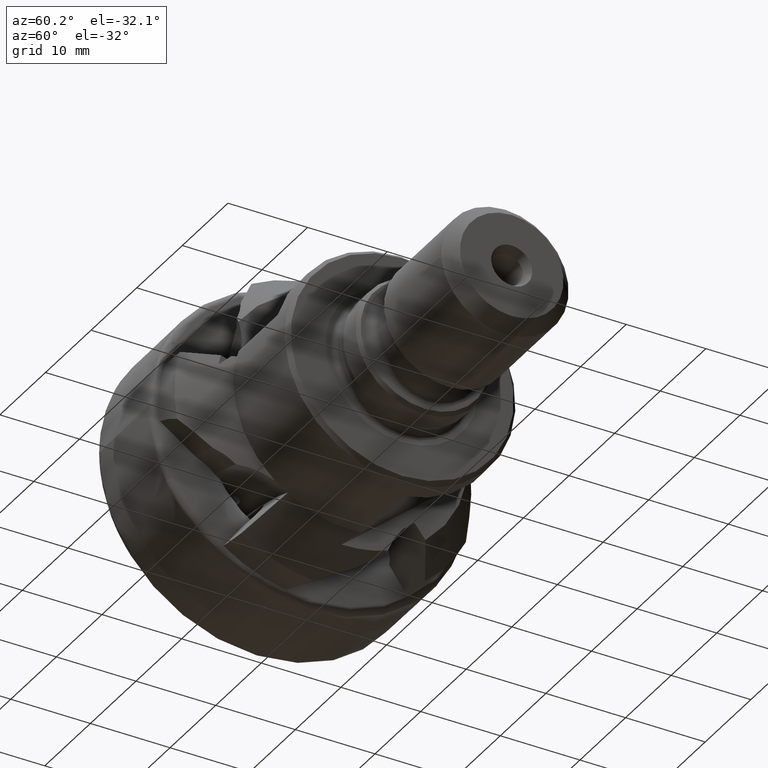
[diagram: clean part render]
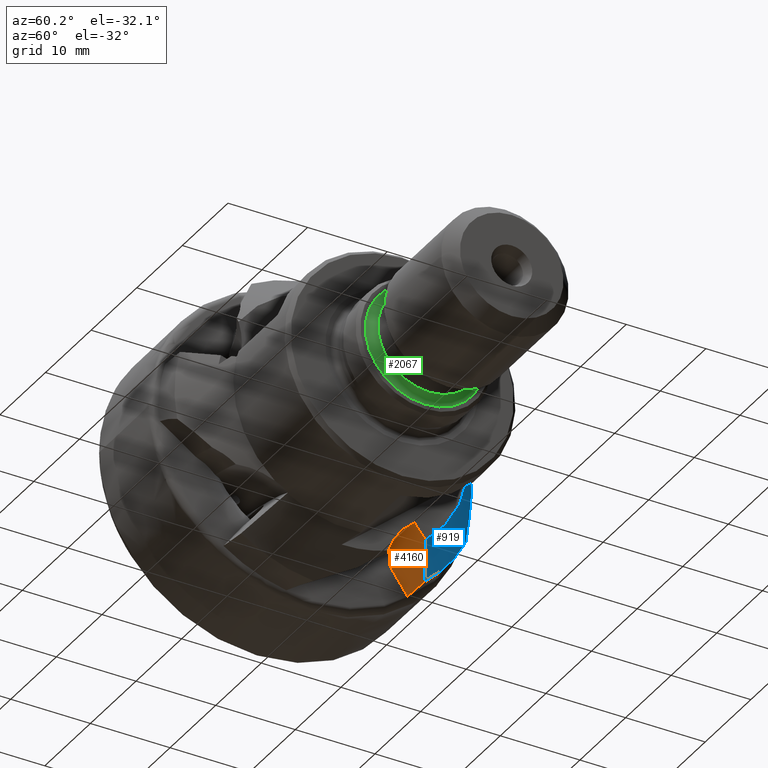
[diagram: same view with three faces highlighted in distinct colors, each labeled with its STEP entity id]
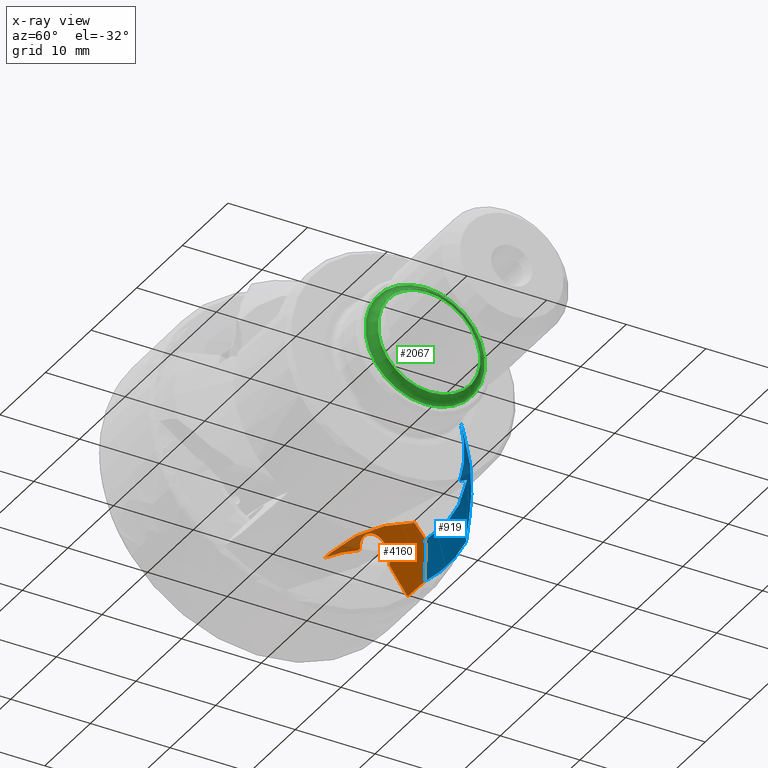
[diagram: x-ray of the same camera — body ghosted, the three highlighted faces saturated]
A machine part, auxiliary view with three faces highlighted in distinct colors.
The next image is the same camera in x-ray (body ghosted, the three faces saturated) — at least one of them is partly hidden behind the body in this view.
Their STEP definitions:

[orange] entity #4160 — the highlighted planar face has unit normal (0.0872, -0.785, -0.6133).
#13 = CARTESIAN_POINT ( 'NONE',  ( 3.946055515482679500, 5.778802882341090600, -8.027156975217790700 ) ) ;
#27 = CARTESIAN_POINT ( 'NONE',  ( 12.23341818291115000, 12.08443954916814200, -14.92032698496009300 ) ) ;
#58 = CARTESIAN_POINT ( 'NONE',  ( 12.61520539697992200, 6.853179426064123400, -8.170365436965074200 ) ) ;
#72 = CARTESIAN_POINT ( 'NONE',  ( 10.47325528511086300, 6.192388499023624400, -7.628973751557560400 ) ) ;
#97 = EDGE_CURVE ( 'NONE', #1510, #237, #1248, .T. ) ;
#106 = EDGE_CURVE ( 'NONE', #3384, #2085, #4527, .T. ) ;
#125 = EDGE_CURVE ( 'NONE', #336, #1510, #3118, .T. ) ;
#141 = AXIS2_PLACEMENT_3D ( 'NONE', #581, #3060, #927 ) ;
#237 = VERTEX_POINT ( 'NONE', #3522 ) ;
#243 = DIRECTION ( 'NONE',  ( 0.9960953959093014100, 0.07736549132352861500, 0.04252696792108680300 ) ) ;
#331 = ORIENTED_EDGE ( 'NONE', *, *, #125, .T. ) ;
#336 = VERTEX_POINT ( 'NONE', #3897 ) ;
#405 = ORIENTED_EDGE ( 'NONE', *, *, #3187, .T. ) ;
#412 = CARTESIAN_POINT ( 'NONE',  ( 8.593843813832471300, 7.213485428924766300, -9.202992263208747300 ) ) ;
#423 = CARTESIAN_POINT ( 'NONE',  ( 8.977918880617993500, 7.243316061982472600, -9.186594689130029000 ) ) ;
#578 = FACE_OUTER_BOUND ( 'NONE', #1666, .T. ) ;
#581 = CARTESIAN_POINT ( 'NONE',  ( 4.693019971817706800, 21.84555144615301400, -28.48550986327269300 ) ) ;
#608 = VERTEX_POINT ( 'NONE', #3902 ) ;
#631 = CARTESIAN_POINT ( 'NONE',  ( 5.044657884303792800, 5.864129962841703400, -7.980253608443134400 ) ) ;
#863 = CIRCLE ( 'NONE', #141, 25.99990415222657700 ) ;
#927 = DIRECTION ( 'NONE',  ( 0.0000000000000000000, -0.6156614753256647300, 0.7880107536067169100 ) ) ;
#987 = VECTOR ( 'NONE', #243, 1000.000000000000000 ) ;
#988 = CARTESIAN_POINT ( 'NONE',  ( 11.09987914869350900, 12.00704680414810400, -14.98235051795935000 ) ) ;
#1031 = CARTESIAN_POINT ( 'NONE',  ( 8.226207806344792300, 7.063319827044586500, -9.063032025973733100 ) ) ;
#1054 = ORIENTED_EDGE ( 'NONE', *, *, #3636, .T. ) ;
#1064 = VECTOR ( 'NONE', #2941, 999.9999999999998900 ) ;
#1078 = CARTESIAN_POINT ( 'NONE',  ( 13.36681448156617200, 12.16134939801110300, -14.85770565649765600 ) ) ;
#1131 = CARTESIAN_POINT ( 'NONE',  ( 12.48203207116323200, 8.521402454295325100, -10.32451815742239500 ) ) ;
#1133 = ORIENTED_EDGE ( 'NONE', *, *, #4093, .T. ) ;
#1146 = ORIENTED_EDGE ( 'NONE', *, *, #1877, .F. ) ;
#1148 = CARTESIAN_POINT ( 'NONE',  ( 11.35567308641507500, 9.555546643521459800, -11.80822376630907800 ) ) ;
#1156 = CARTESIAN_POINT ( 'NONE',  ( 17.90000000000000200, 8.684091249857733200, -9.762829199147352800 ) ) ;
#1248 = LINE ( 'NONE', #3337, #2355 ) ;
#1268 = VERTEX_POINT ( 'NONE', #1695 ) ;
#1409 = CARTESIAN_POINT ( 'NONE',  ( 8.593843813832471300, 7.213485428924766300, -9.202992263208747300 ) ) ;
#1506 = LINE ( 'NONE', #631, #1603 ) ;
#1510 = VERTEX_POINT ( 'NONE', #1878 ) ;
#1526 = PLANE ( 'NONE',  #3525 ) ;
#1603 = VECTOR ( 'NONE', #3484, 999.9999999999998900 ) ;
#1666 = EDGE_LOOP ( 'NONE', ( #1146, #1133, #3282, #2603, #3278, #1054, #2719, #405, #331, #1754, #3162 ) ) ;
#1679 = CARTESIAN_POINT ( 'NONE',  ( 12.49738582572153700, 8.329070493169487200, -10.07616262565073000 ) ) ;
#1695 = CARTESIAN_POINT ( 'NONE',  ( 11.35567308641507500, 9.555546643521459800, -11.80822376630907800 ) ) ;
#1714 = CARTESIAN_POINT ( 'NONE',  ( 7.851797578833785700, 6.923690482951729000, -8.937520235248182800 ) ) ;
#1715 = CARTESIAN_POINT ( 'NONE',  ( 11.28596915242389700, 10.58002698064954700, -13.12940408884374800 ) ) ;
#1754 = ORIENTED_EDGE ( 'NONE', *, *, #97, .T. ) ;
#1763 = CARTESIAN_POINT ( 'NONE',  ( 6.710112606820647600, 6.533505260820986000, -8.600345234232280600 ) ) ;
#1795 = CARTESIAN_POINT ( 'NONE',  ( 11.09987914869350900, 12.00704680414810400, -14.98235051795935000 ) ) ;
#1823 = LINE ( 'NONE', #3783, #987 ) ;
#1877 = EDGE_CURVE ( 'NONE', #3110, #1268, #1901, .T. ) ;
#1878 = CARTESIAN_POINT ( 'NONE',  ( 12.49738582572153700, 8.329070493169487200, -10.07616262565073000 ) ) ;
#1882 = DIRECTION ( 'NONE',  ( 0.0000000000000000000, 0.6156614753256649500, -0.7880107536067168000 ) ) ;
#1901 = B_SPLINE_CURVE_WITH_KNOTS ( 'NONE', 3,
 ( #988, #3487, #3860, #1715, #4223, #2075, #4578, #2433 ),
 .UNSPECIFIED., .F., .F.,
 ( 4, 2, 2, 4 ),
 ( 5.658429974720307800E-005, 0.002067571057596851200, 0.003073064436521676800, 0.004078557815446502900 ),
 .UNSPECIFIED. ) ;
#1908 = CARTESIAN_POINT ( 'NONE',  ( 11.09987914869350900, 12.00704680414810400, -14.98235051795935000 ) ) ;
#1995 =( BOUNDED_CURVE ( )  B_SPLINE_CURVE ( 3, ( #1131, #4005, #3288, #1148 ),
 .UNSPECIFIED., .F., .T. ) 
 B_SPLINE_CURVE_WITH_KNOTS ( ( 4, 4 ),
 ( 1.331173519080860500, 2.400226728760937800 ),
 .UNSPECIFIED. ) 
 CURVE ( )  GEOMETRIC_REPRESENTATION_ITEM ( )  RATIONAL_B_SPLINE_CURVE ( ( 1.000000000000000000, 0.9070065927678514500, 0.9070065927678514500, 1.000000000000000000 ) ) 
 REPRESENTATION_ITEM ( '' )  );
#2074 = LINE ( 'NONE', #1156, #1064 ) ;
#2075 = CARTESIAN_POINT ( 'NONE',  ( 11.36218566694418900, 9.968157174851869600, -12.33541569203652900 ) ) ;
#2082 = CARTESIAN_POINT ( 'NONE',  ( 16.76765141651624100, 10.99326827203379000, -12.87935356613944800 ) ) ;
#2085 = VERTEX_POINT ( 'NONE', #2577 ) ;
#2090 = EDGE_CURVE ( 'NONE', #2085, #608, #2074, .T. ) ;
#2133 = CARTESIAN_POINT ( 'NONE',  ( 4.756551640032280500, 5.962134548513922100, -8.146635137550640900 ) ) ;
#2355 = VECTOR ( 'NONE', #4488, 1000.000000000000100 ) ;
#2374 = CARTESIAN_POINT ( 'NONE',  ( 15.63414353110450100, 11.61573886797829800, -13.83715689967936200 ) ) ;
#2433 = CARTESIAN_POINT ( 'NONE',  ( 11.35567308641507500, 9.555546643521459800, -11.80822376630907800 ) ) ;
#2498 = CARTESIAN_POINT ( 'NONE',  ( 14.50000000000000000, 12.23777173331198000, -14.79449029211044600 ) ) ;
#2577 = CARTESIAN_POINT ( 'NONE',  ( 17.90000000000000200, 10.37000301705652900, -11.92069785818925900 ) ) ;
#2603 = ORIENTED_EDGE ( 'NONE', *, *, #2090, .T. ) ;
#2719 = ORIENTED_EDGE ( 'NONE', *, *, #2877, .F. ) ;
#2859 = B_SPLINE_CURVE_WITH_KNOTS ( 'NONE', 3,
 ( #1409, #1031, #1714, #3907, #1763, #4262, #2133, #13 ),
 .UNSPECIFIED., .F., .F.,
 ( 4, 2, 2, 4 ),
 ( 0.008763163472764332100, 0.01002672568947170000, 0.01129028790617907100, 0.01381741233959380900 ),
 .UNSPECIFIED. ) ;
#2877 = EDGE_CURVE ( 'NONE', #2995, #3421, #2859, .T. ) ;
#2904 = CARTESIAN_POINT ( 'NONE',  ( 3.946055515482679500, 5.778802882341090600, -8.027156975217790700 ) ) ;
#2941 = DIRECTION ( 'NONE',  ( 0.0000000000000000000, -0.6156614753256649500, 0.7880107536067168000 ) ) ;
#2995 = VERTEX_POINT ( 'NONE', #412 ) ;
#3036 = VERTEX_POINT ( 'NONE', #3989 ) ;
#3060 = DIRECTION ( 'NONE',  ( -0.08715574274765833200, 0.7850121347822922600, 0.6133186975387693300 ) ) ;
#3110 = VERTEX_POINT ( 'NONE', #1908 ) ;
#3118 =( BOUNDED_CURVE ( )  B_SPLINE_CURVE ( 3, ( #423, #72, #58, #1679 ),
 .UNSPECIFIED., .F., .F. ) 
 B_SPLINE_CURVE_WITH_KNOTS ( ( 4, 4 ),
 ( 5.127512264379687300, 7.614358826260448700 ),
 .UNSPECIFIED. ) 
 CURVE ( )  GEOMETRIC_REPRESENTATION_ITEM ( )  RATIONAL_B_SPLINE_CURVE ( ( 1.000000000000000000, 0.5477044688702651400, 0.5477044688702651400, 1.000000000000000000 ) ) 
 REPRESENTATION_ITEM ( '' )  );
#3162 = ORIENTED_EDGE ( 'NONE', *, *, #3431, .T. ) ;
#3187 = EDGE_CURVE ( 'NONE', #2995, #336, #1823, .T. ) ;
#3278 = ORIENTED_EDGE ( 'NONE', *, *, #3514, .F. ) ;
#3282 = ORIENTED_EDGE ( 'NONE', *, *, #106, .T. ) ;
#3288 = CARTESIAN_POINT ( 'NONE',  ( 12.02980739933266800, 9.380948501746473800, -11.48895038112837100 ) ) ;
#3337 = CARTESIAN_POINT ( 'NONE',  ( 12.63402038633856100, 6.617489596051008500, -7.866022504446507700 ) ) ;
#3384 = VERTEX_POINT ( 'NONE', #2498 ) ;
#3421 = VERTEX_POINT ( 'NONE', #2904 ) ;
#3431 = EDGE_CURVE ( 'NONE', #237, #1268, #1995, .T. ) ;
#3484 = DIRECTION ( 'NONE',  ( -0.9960953959093015200, -0.07736549132352885100, -0.04252696792108649800 ) ) ;
#3487 = CARTESIAN_POINT ( 'NONE',  ( 11.15304905648723700, 11.59932701254986000, -14.45293726494077700 ) ) ;
#3514 = EDGE_CURVE ( 'NONE', #3036, #608, #863, .T. ) ;
#3522 = CARTESIAN_POINT ( 'NONE',  ( 12.48203207116323200, 8.521402454295325100, -10.32451815742239500 ) ) ;
#3525 = AXIS2_PLACEMENT_3D ( 'NONE', #4015, #4027, #1882 ) ;
#3585 = CARTESIAN_POINT ( 'NONE',  ( 14.50000000000000000, 12.23777173331198000, -14.79449029211044600 ) ) ;
#3636 = EDGE_CURVE ( 'NONE', #3036, #3421, #1506, .T. ) ;
#3740 = CARTESIAN_POINT ( 'NONE',  ( 14.50000000000000000, 12.23777173331198000, -14.79449029211044600 ) ) ;
#3783 = CARTESIAN_POINT ( 'NONE',  ( 5.020130502927989000, 6.935919557940786200, -9.355567199260773800 ) ) ;
#3860 = CARTESIAN_POINT ( 'NONE',  ( 11.20621794687470000, 11.19160710058648300, -13.92352400244050700 ) ) ;
#3897 = CARTESIAN_POINT ( 'NONE',  ( 8.977918880617993500, 7.243316061982472600, -9.186594689130029000 ) ) ;
#3902 = CARTESIAN_POINT ( 'NONE',  ( 17.90000000000000600, 8.986214975281024300, -10.14952993338991000 ) ) ;
#3907 = CARTESIAN_POINT ( 'NONE',  ( 7.093796291163380700, 6.658711168501292300, -8.706078062281791900 ) ) ;
#3989 = CARTESIAN_POINT ( 'NONE',  ( 5.044657884303792800, 5.864129962841703400, -7.980253608443134400 ) ) ;
#4005 = CARTESIAN_POINT ( 'NONE',  ( 12.44375477073031700, 9.000890922793976400, -10.94367481175743400 ) ) ;
#4015 = CARTESIAN_POINT ( 'NONE',  ( 5.044657884303792800, 5.864129962841703400, -7.980253608443134400 ) ) ;
#4027 = DIRECTION ( 'NONE',  ( 0.08715574274765845700, -0.7850121347822921500, -0.6133186975387694400 ) ) ;
#4084 =( BOUNDED_CURVE ( )  B_SPLINE_CURVE ( 3, ( #1795, #27, #1078, #3585 ),
 .UNSPECIFIED., .F., .T. ) 
 B_SPLINE_CURVE_WITH_KNOTS ( ( 4, 4 ),
 ( 1.583172995741302100, 1.598669623695982800 ),
 .UNSPECIFIED. ) 
 CURVE ( )  GEOMETRIC_REPRESENTATION_ITEM ( )  RATIONAL_B_SPLINE_CURVE ( ( 1.000000000000000000, 0.9999799879769570900, 0.9999799879769570900, 1.000000000000000000 ) ) 
 REPRESENTATION_ITEM ( '' )  );
#4093 = EDGE_CURVE ( 'NONE', #3110, #3384, #4084, .T. ) ;
#4160 = ADVANCED_FACE ( 'NONE', ( #578 ), #1526, .T. ) ;
#4223 = CARTESIAN_POINT ( 'NONE',  ( 11.31441245881161200, 10.37631930592662000, -12.86462821497610800 ) ) ;
#4262 = CARTESIAN_POINT ( 'NONE',  ( 5.547042784830163800, 6.176580885150966300, -8.308781072540815800 ) ) ;
#4302 = CARTESIAN_POINT ( 'NONE',  ( 17.90000000000000200, 10.37000301705652900, -11.92069785818925900 ) ) ;
#4488 = DIRECTION ( 'NONE',  ( -0.04882017615173703300, 0.6115559673769764800, -0.7896935412969539000 ) ) ;
#4527 = B_SPLINE_CURVE_WITH_KNOTS ( 'NONE', 3,
 ( #3740, #2374, #2082, #4302 ),
 .UNSPECIFIED., .F., .F.,
 ( 4, 4 ),
 ( 2.837826928573113100E-007, 0.004828041012960033200 ),
 .UNSPECIFIED. ) ;
#4578 = CARTESIAN_POINT ( 'NONE',  ( 11.37744591270988100, 9.763369230121712800, -12.07113051636031800 ) ) ;

[blue] entity #919 — the highlighted conical surface has half-angle 45 deg.
#106 = EDGE_CURVE ( 'NONE', #3384, #2085, #4527, .T. ) ;
#122 = EDGE_CURVE ( 'NONE', #3056, #1595, #855, .T. ) ;
#153 = B_SPLINE_CURVE_WITH_KNOTS ( 'NONE', 3,
 ( #3687, #4026, #4404, #2273, #160, #2624, #508, #2973 ),
 .UNSPECIFIED., .F., .F.,
 ( 4, 2, 2, 4 ),
 ( 4.504661056180557600E-018, 0.002332467446583743900, 0.003498701169875613000, 0.004664934893167481700 ),
 .UNSPECIFIED. ) ;
#160 = CARTESIAN_POINT ( 'NONE',  ( 18.85642153511899400, 14.69204588450321900, 2.146831944385612500 ) ) ;
#229 = DIRECTION ( 'NONE',  ( -1.000000000000000000, -0.0000000000000000000, -0.0000000000000000000 ) ) ;
#244 = CARTESIAN_POINT ( 'NONE',  ( 19.19999999999998200, 14.06023270499386000, 3.543988753004315500 ) ) ;
#284 = AXIS2_PLACEMENT_3D ( 'NONE', #2863, #739, #3235 ) ;
#290 = B_SPLINE_CURVE_WITH_KNOTS ( 'NONE', 3,
 ( #376, #2158, #2510, #390 ),
 .UNSPECIFIED., .F., .F.,
 ( 4, 4 ),
 ( 4.430782600385664200E-007, 0.005290068808453149200 ),
 .UNSPECIFIED. ) ;
#292 = ORIENTED_EDGE ( 'NONE', *, *, #4117, .T. ) ;
#376 = CARTESIAN_POINT ( 'NONE',  ( 14.49999999999981700, 17.37811298613822300, -8.163405480620268100 ) ) ;
#390 = CARTESIAN_POINT ( 'NONE',  ( 16.45826088523567800, 16.93168457711026400, -3.255092177318487300 ) ) ;
#427 = CONICAL_SURFACE ( 'NONE', #1717, 14.50000000000000000, 0.7853981633974501700 ) ;
#508 = CARTESIAN_POINT ( 'NONE',  ( 19.14417143333829700, 14.20878348838863300, 3.183055224261894800 ) ) ;
#684 = DIRECTION ( 'NONE',  ( -1.000000000000000000, -0.0000000000000000000, -0.0000000000000000000 ) ) ;
#687 = ORIENTED_EDGE ( 'NONE', *, *, #106, .F. ) ;
#692 = VERTEX_POINT ( 'NONE', #2758 ) ;
#739 = DIRECTION ( 'NONE',  ( -1.000000000000000000, -0.0000000000000000000, -0.0000000000000000000 ) ) ;
#754 = DIRECTION ( 'NONE',  ( -1.000000000000000000, 0.0000000000000000000, -0.0000000000000000000 ) ) ;
#773 = VERTEX_POINT ( 'NONE', #244 ) ;
#843 = FACE_OUTER_BOUND ( 'NONE', #4021, .T. ) ;
#855 = B_SPLINE_CURVE_WITH_KNOTS ( 'NONE', 3,
 ( #2188, #923, #3586, #2145, #3572, #3203 ),
 .UNSPECIFIED., .F., .F.,
 ( 4, 2, 4 ),
 ( 2.168404344971008900E-018, 0.001643530129757112400, 0.003287060259514222700 ),
 .UNSPECIFIED. ) ;
#883 = ORIENTED_EDGE ( 'NONE', *, *, #122, .T. ) ;
#919 = ADVANCED_FACE ( 'NONE', ( #843 ), #427, .T. ) ;
#923 = CARTESIAN_POINT ( 'NONE',  ( 16.70880139969302300, 16.76640826382931900, -2.787717460862678000 ) ) ;
#960 = VERTEX_POINT ( 'NONE', #3198 ) ;
#1552 = CARTESIAN_POINT ( 'NONE',  ( 17.51712142627220100, 16.18117064568846800, -0.2351073523474524500 ) ) ;
#1595 = VERTEX_POINT ( 'NONE', #1552 ) ;
#1618 = AXIS2_PLACEMENT_3D ( 'NONE', #2883, #754, #3250 ) ;
#1696 = CARTESIAN_POINT ( 'NONE',  ( 17.90000000000000200, 15.58695731702153600, -2.585877336098590300 ) ) ;
#1717 = AXIS2_PLACEMENT_3D ( 'NONE', #2353, #684, #2814 ) ;
#1808 = CARTESIAN_POINT ( 'NONE',  ( 14.49999999999981700, 17.37811298613822300, -8.163405480620268100 ) ) ;
#2082 = CARTESIAN_POINT ( 'NONE',  ( 16.76765141651624100, 10.99326827203379000, -12.87935356613944800 ) ) ;
#2085 = VERTEX_POINT ( 'NONE', #2577 ) ;
#2145 = CARTESIAN_POINT ( 'NONE',  ( 17.28233572738935900, 16.37353013544963800, -1.297567854678946600 ) ) ;
#2158 = CARTESIAN_POINT ( 'NONE',  ( 15.29587909726378200, 17.24666387521633800, -6.571356525463761100 ) ) ;
#2188 = CARTESIAN_POINT ( 'NONE',  ( 16.45826088523567800, 16.93168457711026400, -3.255092177318487300 ) ) ;
#2273 = CARTESIAN_POINT ( 'NONE',  ( 18.73006836371339600, 14.86321809384071800, 1.814919059326192400 ) ) ;
#2336 = CARTESIAN_POINT ( 'NONE',  ( 19.19999999999998200, 0.0000000000000000000, 0.0000000000000000000 ) ) ;
#2353 = CARTESIAN_POINT ( 'NONE',  ( 19.19999999999998200, 0.0000000000000000000, 0.0000000000000000000 ) ) ;
#2374 = CARTESIAN_POINT ( 'NONE',  ( 15.63414353110450100, 11.61573886797829800, -13.83715689967936200 ) ) ;
#2400 = CARTESIAN_POINT ( 'NONE',  ( 18.79039655258515800, 14.50757666204049900, -3.491585245593061200 ) ) ;
#2498 = CARTESIAN_POINT ( 'NONE',  ( 14.50000000000000000, 12.23777173331198000, -14.79449029211044600 ) ) ;
#2509 = ORIENTED_EDGE ( 'NONE', *, *, #3602, .T. ) ;
#2510 = CARTESIAN_POINT ( 'NONE',  ( 15.95702842870259600, 17.11902882520956800, -4.935556273960084900 ) ) ;
#2577 = CARTESIAN_POINT ( 'NONE',  ( 17.90000000000000200, 10.37000301705652900, -11.92069785818925900 ) ) ;
#2624 = CARTESIAN_POINT ( 'NONE',  ( 19.06352417431515900, 14.36461672204418200, 2.831517093596448700 ) ) ;
#2665 = CIRCLE ( 'NONE', #284, 19.19999999999999900 ) ;
#2694 = DIRECTION ( 'NONE',  ( 0.0000000000000000000, 0.0000000000000000000, 1.000000000000000000 ) ) ;
#2758 = CARTESIAN_POINT ( 'NONE',  ( 19.19999999999998200, 13.94860134532494200, -3.960621227686287300 ) ) ;
#2814 = DIRECTION ( 'NONE',  ( 0.0000000000000000000, 0.0000000000000000000, 1.000000000000000000 ) ) ;
#2863 = CARTESIAN_POINT ( 'NONE',  ( 14.50000000000000000, 0.0000000000000000000, 0.0000000000000000000 ) ) ;
#2883 = CARTESIAN_POINT ( 'NONE',  ( 17.90000000000000200, 0.0000000000000000000, 0.0000000000000000000 ) ) ;
#2888 = ORIENTED_EDGE ( 'NONE', *, *, #3924, .T. ) ;
#2973 = CARTESIAN_POINT ( 'NONE',  ( 19.19999999999998200, 14.06023270499386000, 3.543988753004315500 ) ) ;
#3000 = AXIS2_PLACEMENT_3D ( 'NONE', #2336, #229, #2694 ) ;
#3029 = ORIENTED_EDGE ( 'NONE', *, *, #4087, .T. ) ;
#3052 = ORIENTED_EDGE ( 'NONE', *, *, #3788, .F. ) ;
#3056 = VERTEX_POINT ( 'NONE', #4019 ) ;
#3145 = EDGE_CURVE ( 'NONE', #773, #692, #3735, .T. ) ;
#3198 = CARTESIAN_POINT ( 'NONE',  ( 17.90000000000000200, 15.58695731702153600, -2.585877336098590300 ) ) ;
#3203 = CARTESIAN_POINT ( 'NONE',  ( 17.51712142627220100, 16.18117064568846800, -0.2351073523474524500 ) ) ;
#3235 = DIRECTION ( 'NONE',  ( 0.0000000000000000000, 0.0000000000000000000, 1.000000000000000000 ) ) ;
#3250 = DIRECTION ( 'NONE',  ( 0.0000000000000000000, 0.0000000000000000000, 1.000000000000000000 ) ) ;
#3384 = VERTEX_POINT ( 'NONE', #2498 ) ;
#3500 = ORIENTED_EDGE ( 'NONE', *, *, #3145, .T. ) ;
#3572 = CARTESIAN_POINT ( 'NONE',  ( 17.42253539573263100, 16.26789773177653600, -0.7766832159997737500 ) ) ;
#3586 = CARTESIAN_POINT ( 'NONE',  ( 16.92550129688403600, 16.62275519959067400, -2.303103901507380400 ) ) ;
#3602 = EDGE_CURVE ( 'NONE', #692, #960, #3794, .T. ) ;
#3687 = CARTESIAN_POINT ( 'NONE',  ( 17.51712142627220100, 16.18117064568846800, -0.2351073523474524500 ) ) ;
#3735 = CIRCLE ( 'NONE', #3000, 14.50000000000000000 ) ;
#3740 = CARTESIAN_POINT ( 'NONE',  ( 14.50000000000000000, 12.23777173331198000, -14.79449029211044600 ) ) ;
#3786 = VERTEX_POINT ( 'NONE', #1808 ) ;
#3788 = EDGE_CURVE ( 'NONE', #3786, #3384, #2665, .T. ) ;
#3794 = B_SPLINE_CURVE_WITH_KNOTS ( 'NONE', 3,
 ( #4189, #2400, #3838, #1696 ),
 .UNSPECIFIED., .F., .F.,
 ( 4, 4 ),
 ( 0.06089144170174544400, 0.06340278606512640700 ),
 .UNSPECIFIED. ) ;
#3838 = CARTESIAN_POINT ( 'NONE',  ( 18.35417004986763300, 15.05212782359538300, -3.034652566775199100 ) ) ;
#3924 = EDGE_CURVE ( 'NONE', #1595, #773, #153, .T. ) ;
#4019 = CARTESIAN_POINT ( 'NONE',  ( 16.45826088523567800, 16.93168457711026400, -3.255092177318487300 ) ) ;
#4021 = EDGE_LOOP ( 'NONE', ( #3052, #3029, #883, #2888, #3500, #2509, #292, #687 ) ) ;
#4026 = CARTESIAN_POINT ( 'NONE',  ( 17.93638578360279500, 15.76947403646329300, 0.2887856506541949300 ) ) ;
#4087 = EDGE_CURVE ( 'NONE', #3786, #3056, #290, .T. ) ;
#4117 = EDGE_CURVE ( 'NONE', #960, #2085, #4482, .T. ) ;
#4189 = CARTESIAN_POINT ( 'NONE',  ( 19.19999999999998200, 13.94860134532494200, -3.960621227686287300 ) ) ;
#4302 = CARTESIAN_POINT ( 'NONE',  ( 17.90000000000000200, 10.37000301705652900, -11.92069785818925900 ) ) ;
#4404 = CARTESIAN_POINT ( 'NONE',  ( 18.29746232671310900, 15.39250150796520900, 0.8662473733601857600 ) ) ;
#4482 = CIRCLE ( 'NONE', #1618, 15.79999999999998500 ) ;
#4527 = B_SPLINE_CURVE_WITH_KNOTS ( 'NONE', 3,
 ( #3740, #2374, #2082, #4302 ),
 .UNSPECIFIED., .F., .F.,
 ( 4, 4 ),
 ( 2.837826928573113100E-007, 0.004828041012960033200 ),
 .UNSPECIFIED. ) ;

[green] entity #2067 — the highlighted toroidal blend (fillet) surface has major radius 7.5 mm and minor (blend) radius 1 mm.
#80 = CARTESIAN_POINT ( 'NONE',  ( 36.90000000000000600, 0.0000000000000000000, 6.499999999999999100 ) ) ;
#109 = AXIS2_PLACEMENT_3D ( 'NONE', #3862, #1718, #4226 ) ;
#114 = CARTESIAN_POINT ( 'NONE',  ( 36.90000000000000600, 0.0000000000000000000, 0.0000000000000000000 ) ) ;
#464 = DIRECTION ( 'NONE',  ( -1.000000000000000000, -0.0000000000000000000, -0.0000000000000000000 ) ) ;
#516 = EDGE_LOOP ( 'NONE', ( #1162 ) ) ;
#525 = FACE_OUTER_BOUND ( 'NONE', #516, .T. ) ;
#620 = CIRCLE ( 'NONE', #109, 7.500000000000000000 ) ;
#1162 = ORIENTED_EDGE ( 'NONE', *, *, #2402, .F. ) ;
#1213 = AXIS2_PLACEMENT_3D ( 'NONE', #3544, #1410, #3908 ) ;
#1410 = DIRECTION ( 'NONE',  ( -1.000000000000000000, -0.0000000000000000000, -0.0000000000000000000 ) ) ;
#1592 = ORIENTED_EDGE ( 'NONE', *, *, #1960, .T. ) ;
#1685 = TOROIDAL_SURFACE ( 'NONE', #4568, 7.500000000000000000, 1.000000000000000400 ) ;
#1718 = DIRECTION ( 'NONE',  ( -1.000000000000000000, -0.0000000000000000000, -0.0000000000000000000 ) ) ;
#1960 = EDGE_CURVE ( 'NONE', #2243, #2243, #3240, .T. ) ;
#2067 = ADVANCED_FACE ( 'NONE', ( #525, #4220 ), #1685, .F. ) ;
#2243 = VERTEX_POINT ( 'NONE', #80 ) ;
#2402 = EDGE_CURVE ( 'NONE', #3760, #3760, #620, .T. ) ;
#2893 = CARTESIAN_POINT ( 'NONE',  ( 35.89999999999999900, 0.0000000000000000000, 7.500000000000000000 ) ) ;
#2925 = DIRECTION ( 'NONE',  ( 0.0000000000000000000, 0.0000000000000000000, 1.000000000000000000 ) ) ;
#3240 = CIRCLE ( 'NONE', #1213, 6.499999999999999100 ) ;
#3544 = CARTESIAN_POINT ( 'NONE',  ( 36.90000000000000600, 0.0000000000000000000, 0.0000000000000000000 ) ) ;
#3760 = VERTEX_POINT ( 'NONE', #2893 ) ;
#3862 = CARTESIAN_POINT ( 'NONE',  ( 35.89999999999999900, 0.0000000000000000000, 0.0000000000000000000 ) ) ;
#3908 = DIRECTION ( 'NONE',  ( 0.0000000000000000000, 0.0000000000000000000, 1.000000000000000000 ) ) ;
#4220 = FACE_OUTER_BOUND ( 'NONE', #4382, .T. ) ;
#4226 = DIRECTION ( 'NONE',  ( 0.0000000000000000000, 0.0000000000000000000, 1.000000000000000000 ) ) ;
#4382 = EDGE_LOOP ( 'NONE', ( #1592 ) ) ;
#4568 = AXIS2_PLACEMENT_3D ( 'NONE', #114, #464, #2925 ) ;